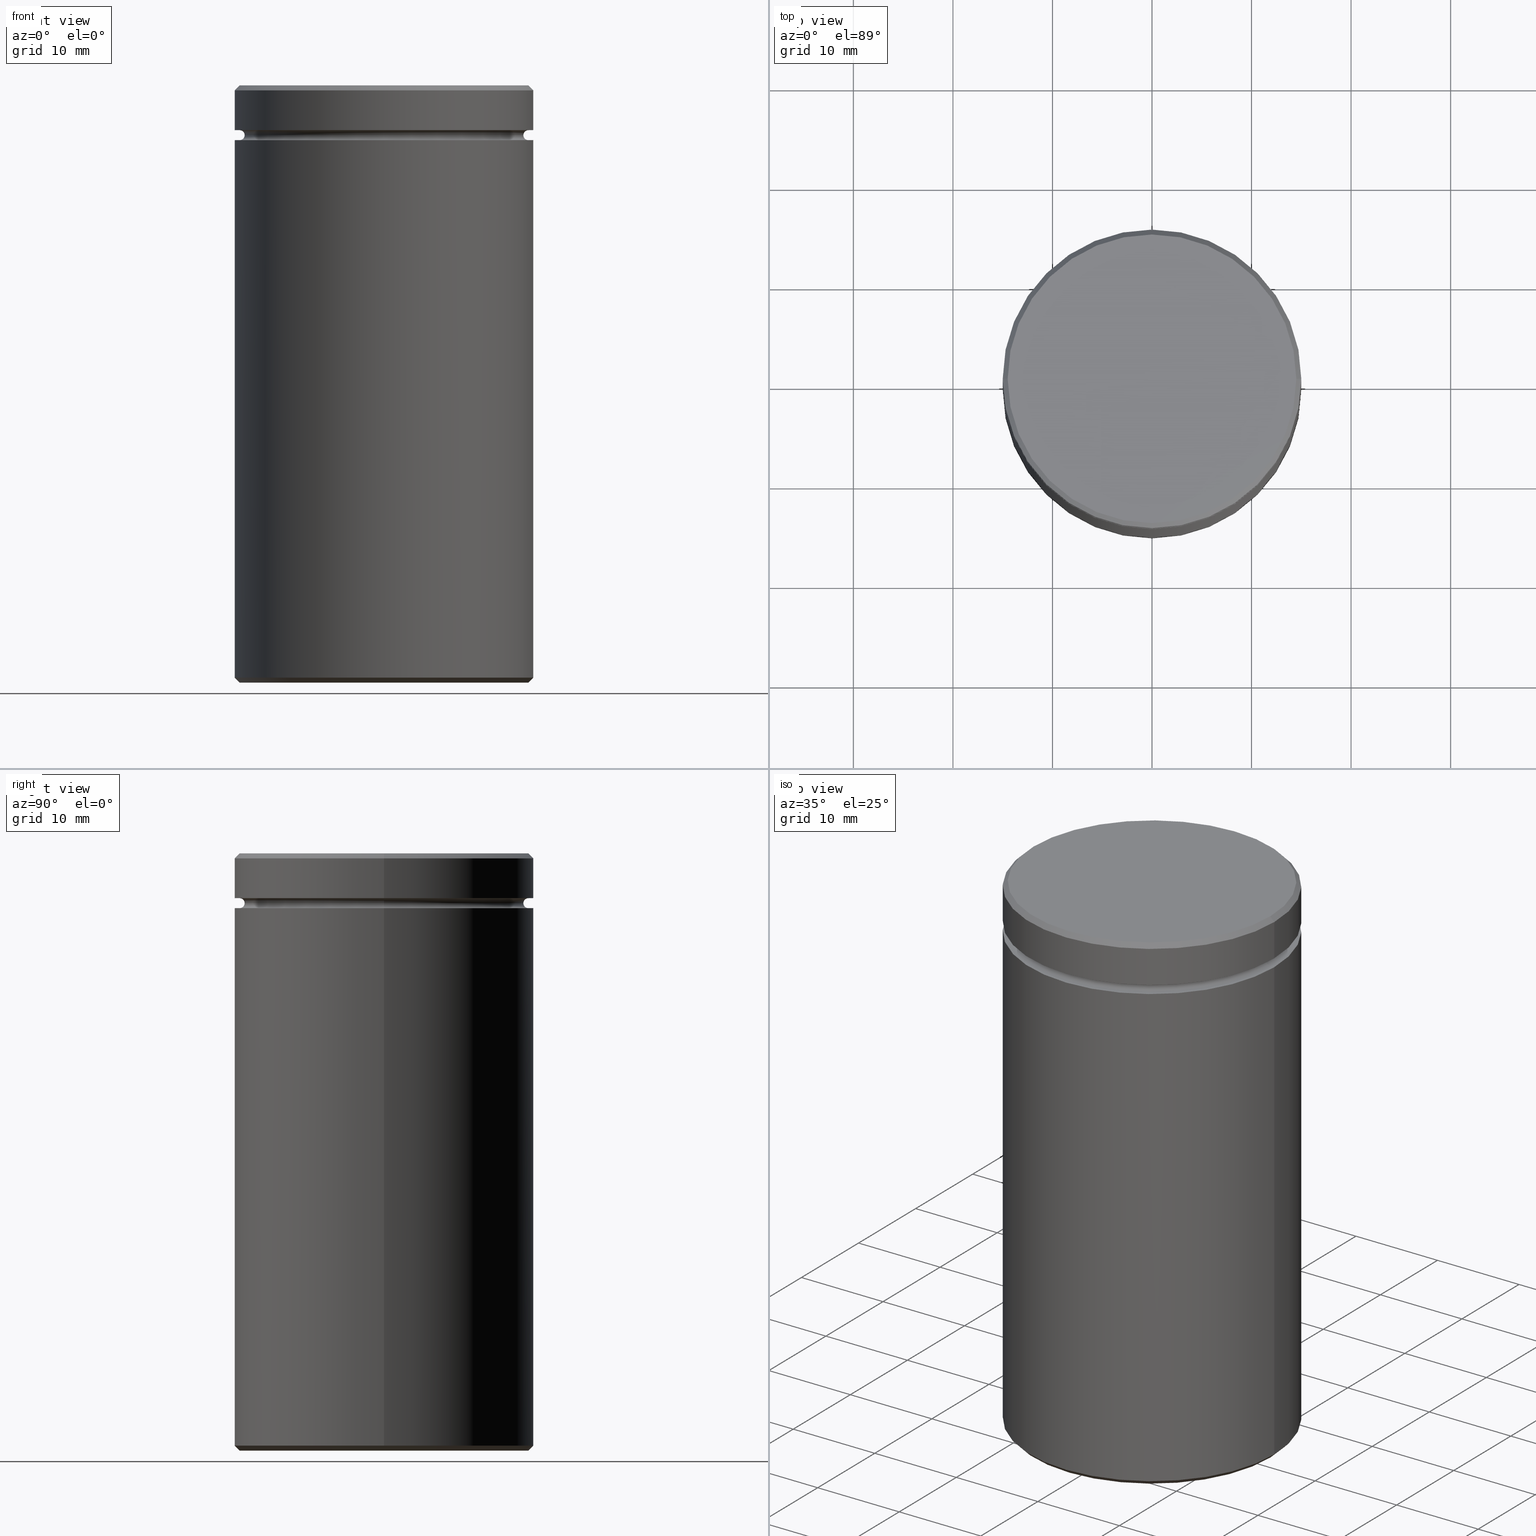
[diagram: canonical four-view strip — front | top / right | iso, engineering-drawing reading convention]
A machine part, canonical four-view strip (front | top / right | iso — engineering-drawing reading convention). The complete STEP part file that produces these views, byte-faithful:
ISO-10303-21;
HEADER;
FILE_DESCRIPTION (( 'STEP AP203' ),
    '1' );
FILE_NAME ('6bfd.STEP',
    '2024-01-02T17:58:30',
    ( '' ),
    ( '' ),
    'SwSTEP 2.0',
    'SolidWorks 2019',
    '' );
FILE_SCHEMA (( 'CONFIG_CONTROL_DESIGN' ));
ENDSEC;

DATA;
#1 = CARTESIAN_POINT ( 'NONE',  ( 0.000000000000000000, 0.000000000000000000, -18.99999999999999645 ) ) ;
#2 = SECURITY_CLASSIFICATION ( '', '', #471 ) ;
#3 = AXIS2_PLACEMENT_3D ( 'NONE', #92, #129, #260 ) ;
#4 = ORIENTED_EDGE ( 'NONE', *, *, #304, .T. ) ;
#5 = LINE ( 'NONE', #181, #174 ) ;
#6 = CARTESIAN_POINT ( 'NONE',  ( 0.000000000000000000, 0.000000000000000000, 0.000000000000000000 ) ) ;
#7 = CARTESIAN_POINT ( 'NONE',  ( 15.00000000000000000, 0.000000000000000000, -59.49999999999998579 ) ) ;
#8 = DIRECTION ( 'NONE',  ( -1.000000000000000000, 0.000000000000000000, 0.000000000000000000 ) ) ;
#9 = CARTESIAN_POINT ( 'NONE',  ( 0.000000000000000000, 0.000000000000000000, 0.000000000000000000 ) ) ;
#10 = EDGE_CURVE ( 'NONE', #565, #424, #390, .T. ) ;
#11 = DIRECTION ( 'NONE',  ( -1.000000000000000000, 1.224646799147349509E-16, 0.000000000000000000 ) ) ;
#12 = PERSON_AND_ORGANIZATION_ROLE ( 'creator' ) ;
#13 = PERSON ( 'NEUR�EN�', 'NEUR�EN�', 'NEUR�EN�', ('NEUR�EN�'), ('NEUR�EN�'), ('NEUR�EN�') ) ;
#14 = CIRCLE ( 'NONE', #100, 14.49999999999999645 ) ;
#15 = ORIENTED_EDGE ( 'NONE', *, *, #329, .F. ) ;
#16 = DATE_AND_TIME ( #189, #541 ) ;
#17 = CARTESIAN_POINT ( 'NONE',  ( 0.000000000000000000, 0.000000000000000000, -5.500000000000000000 ) ) ;
#18 = CYLINDRICAL_SURFACE ( 'NONE', #43, 15.00000000000000000 ) ;
#19 = CARTESIAN_POINT ( 'NONE',  ( -15.00000000000000000, 1.836970198721029589E-15, -5.500000000000000000 ) ) ;
#20 = ORIENTED_EDGE ( 'NONE', *, *, #521, .F. ) ;
#21 = CC_DESIGN_PERSON_AND_ORGANIZATION_ASSIGNMENT ( #127, #297, ( #278 ) ) ;
#22 = ORIENTED_EDGE ( 'NONE', *, *, #220, .F. ) ;
#23 = AXIS2_PLACEMENT_3D ( 'NONE', #543, #449, #267 ) ;
#24 = EDGE_LOOP ( 'NONE', ( #358, #4, #229, #368 ) ) ;
#25 = AXIS2_PLACEMENT_3D ( 'NONE', #135, #169, #306 ) ;
#26 = AXIS2_PLACEMENT_3D ( 'NONE', #392, #275, #447 ) ;
#27 = LINE ( 'NONE', #403, #342 ) ;
#28 = ORIENTED_EDGE ( 'NONE', *, *, #385, .F. ) ;
#29 = DIRECTION ( 'NONE',  ( 1.000000000000000000, 0.000000000000000000, 0.000000000000000000 ) ) ;
#30 = ADVANCED_FACE ( 'NONE', ( #335 ), #375, .F. ) ;
#31 = CARTESIAN_POINT ( 'NONE',  ( 0.000000000000000000, 0.000000000000000000, 0.000000000000000000 ) ) ;
#32 = ORIENTED_EDGE ( 'NONE', *, *, #63, .T. ) ;
#33 = LINE ( 'NONE', #427, #423 ) ;
#34 = COORDINATED_UNIVERSAL_TIME_OFFSET ( 1, 0, .AHEAD. ) ;
#35 = AXIS2_PLACEMENT_3D ( 'NONE', #276, #112, #272 ) ;
#36 = EDGE_CURVE ( 'NONE', #322, #448, #150, .T. ) ;
#37 = CYLINDRICAL_SURFACE ( 'NONE', #293, 9.500000000000000000 ) ;
#38 = ORIENTED_EDGE ( 'NONE', *, *, #139, .T. ) ;
#39 = DIRECTION ( 'NONE',  ( 1.000000000000000000, 0.000000000000000000, 0.000000000000000000 ) ) ;
#40 = APPROVAL_DATE_TIME ( #430, #340 ) ;
#41 = DIRECTION ( 'NONE',  ( 0.000000000000000000, 0.000000000000000000, -1.000000000000000000 ) ) ;
#42 = AXIS2_PLACEMENT_3D ( 'NONE', #444, #50, #316 ) ;
#43 = AXIS2_PLACEMENT_3D ( 'NONE', #154, #61, #56 ) ;
#44 = AXIS2_PLACEMENT_3D ( 'NONE', #481, #349, #167 ) ;
#45 = VERTEX_POINT ( 'NONE', #209 ) ;
#46 = DIRECTION ( 'NONE',  ( -0.000000000000000000, -0.000000000000000000, -1.000000000000000000 ) ) ;
#47 = FACE_OUTER_BOUND ( 'NONE', #414, .T. ) ;
#48 = FACE_OUTER_BOUND ( 'NONE', #244, .T. ) ;
#49 = CARTESIAN_POINT ( 'NONE',  ( 0.000000000000000000, 0.000000000000000000, -18.99999999999999645 ) ) ;
#50 = DIRECTION ( 'NONE',  ( 0.000000000000000000, -1.000000000000000000, 0.000000000000000000 ) ) ;
#51 =( NAMED_UNIT ( * ) SI_UNIT ( $, .STERADIAN. ) SOLID_ANGLE_UNIT ( ) );
#52 = PERSON_AND_ORGANIZATION_ROLE ( 'classification_officer' ) ;
#53 = EDGE_CURVE ( 'NONE', #509, #161, #270, .T. ) ;
#54 = CARTESIAN_POINT ( 'NONE',  ( 0.000000000000000000, 0.000000000000000000, -60.00000000000000000 ) ) ;
#55 = MECHANICAL_CONTEXT ( 'NONE', #146, 'mechanical' ) ;
#56 = DIRECTION ( 'NONE',  ( 1.000000000000000000, 0.000000000000000000, 0.000000000000000000 ) ) ;
#57 = DIRECTION ( 'NONE',  ( 0.000000000000000000, 0.000000000000000000, -1.000000000000000000 ) ) ;
#58 = ORIENTED_EDGE ( 'NONE', *, *, #36, .T. ) ;
#59 = COORDINATED_UNIVERSAL_TIME_OFFSET ( 1, 0, .AHEAD. ) ;
#60 = DIRECTION ( 'NONE',  ( -1.000000000000000000, 0.000000000000000000, -0.000000000000000000 ) ) ;
#61 = DIRECTION ( 'NONE',  ( -0.000000000000000000, -0.000000000000000000, 1.000000000000000000 ) ) ;
#62 = AXIS2_PLACEMENT_3D ( 'NONE', #562, #525, #522 ) ;
#63 = EDGE_CURVE ( 'NONE', #188, #106, #567, .T. ) ;
#64 = CARTESIAN_POINT ( 'NONE',  ( -14.50000000000000355, 0.000000000000000000, 0.000000000000000000 ) ) ;
#65 = ORIENTED_EDGE ( 'NONE', *, *, #258, .F. ) ;
#66 = ORIENTED_EDGE ( 'NONE', *, *, #274, .F. ) ;
#67 = CARTESIAN_POINT ( 'NONE',  ( -13.99999999999999822, 1.745121688784978228E-15, -4.999999999999999112 ) ) ;
#68 = ORIENTED_EDGE ( 'NONE', *, *, #296, .T. ) ;
#69 = PLANE ( 'NONE',  #250 ) ;
#70 = CARTESIAN_POINT ( 'NONE',  ( 0.000000000000000000, 0.000000000000000000, -4.500000000000000888 ) ) ;
#71 = ORIENTED_EDGE ( 'NONE', *, *, #385, .T. ) ;
#72 = APPROVAL_DATE_TIME ( #287, #192 ) ;
#73 = CARTESIAN_POINT ( 'NONE',  ( 0.000000000000000000, 15.00000000000000000, -60.00000000000000000 ) ) ;
#74 = AXIS2_PLACEMENT_3D ( 'NONE', #144, #315, #279 ) ;
#75 = APPROVAL_ROLE ( '' ) ;
#76 = TOROIDAL_SURFACE ( 'NONE', #383, 14.49999999999999822, 0.5000000000000000000 ) ;
#77 = CARTESIAN_POINT ( 'NONE',  ( 0.000000000000000000, 0.000000000000000000, -59.49999999999998579 ) ) ;
#78 = EDGE_CURVE ( 'NONE', #198, #378, #217, .T. ) ;
#79 = CARTESIAN_POINT ( 'NONE',  ( 0.000000000000000000, 0.000000000000000000, -4.999999999999999112 ) ) ;
#80 = ORIENTED_EDGE ( 'NONE', *, *, #166, .F. ) ;
#81 = FACE_OUTER_BOUND ( 'NONE', #474, .T. ) ;
#82 = ORIENTED_EDGE ( 'NONE', *, *, #443, .T. ) ;
#83 = CARTESIAN_POINT ( 'NONE',  ( -14.49999999999999822, 0.000000000000000000, -5.000000000000000888 ) ) ;
#84 = VERTEX_POINT ( 'NONE', #224 ) ;
#85 = DIRECTION ( 'NONE',  ( 1.000000000000000000, 0.000000000000000000, 0.000000000000000000 ) ) ;
#86 = ADVANCED_FACE ( 'NONE', ( #168 ), #37, .F. ) ;
#87 = ORIENTED_EDGE ( 'NONE', *, *, #199, .F. ) ;
#88 = CC_DESIGN_APPROVAL ( #340, ( #2 ) ) ;
#89 = FACE_OUTER_BOUND ( 'NONE', #407, .T. ) ;
#90 = APPROVAL_STATUS ( 'not_yet_approved' ) ;
#91 = PERSON_AND_ORGANIZATION ( #13, #446 ) ;
#92 = CARTESIAN_POINT ( 'NONE',  ( 0.000000000000000000, 0.000000000000000000, -5.500000000000000000 ) ) ;
#93 = CARTESIAN_POINT ( 'NONE',  ( 0.000000000000000000, 0.000000000000000000, -5.000000000000000888 ) ) ;
#94 = DATE_AND_TIME ( #208, #115 ) ;
#95 = CYLINDRICAL_SURFACE ( 'NONE', #222, 15.00000000000000000 ) ;
#96 = PERSON_AND_ORGANIZATION ( #13, #446 ) ;
#97 = FACE_OUTER_BOUND ( 'NONE', #364, .T. ) ;
#98 = CIRCLE ( 'NONE', #123, 9.500000000000000000 ) ;
#99 = EDGE_CURVE ( 'NONE', #273, #424, #347, .T. ) ;
#100 = AXIS2_PLACEMENT_3D ( 'NONE', #431, #41, #221 ) ;
#101 = FACE_OUTER_BOUND ( 'NONE', #527, .T. ) ;
#102 = PLANE ( 'NONE',  #313 ) ;
#103 = ADVANCED_FACE ( 'NONE', ( #226 ), #467, .T. ) ;
#104 = AXIS2_PLACEMENT_3D ( 'NONE', #386, #536, #149 ) ;
#105 = AXIS2_PLACEMENT_3D ( 'NONE', #77, #280, #459 ) ;
#106 = VERTEX_POINT ( 'NONE', #357 ) ;
#107 = PRODUCT_RELATED_PRODUCT_CATEGORY ( 'detail', '', ( #325 ) ) ;
#108 = PLANE ( 'NONE',  #26 ) ;
#109 = PERSON_AND_ORGANIZATION_ROLE ( 'design_owner' ) ;
#110 = ORIENTED_EDGE ( 'NONE', *, *, #220, .T. ) ;
#111 = DIRECTION ( 'NONE',  ( -0.000000000000000000, -0.000000000000000000, 1.000000000000000000 ) ) ;
#112 = DIRECTION ( 'NONE',  ( -0.000000000000000000, -0.000000000000000000, 1.000000000000000000 ) ) ;
#113 = ADVANCED_FACE ( 'NONE', ( #318 ), #18, .T. ) ;
#114 = CARTESIAN_POINT ( 'NONE',  ( 0.000000000000000000, 0.000000000000000000, -5.500000000000000000 ) ) ;
#115 = LOCAL_TIME ( 18, 58, 30.00000000000000000, #34 ) ;
#116 = CIRCLE ( 'NONE', #305, 15.00000000000000000 ) ;
#117 = PERSON_AND_ORGANIZATION ( #13, #446 ) ;
#118 = ORIENTED_EDGE ( 'NONE', *, *, #243, .F. ) ;
#119 = EDGE_LOOP ( 'NONE', ( #245, #461 ) ) ;
#120 = EDGE_LOOP ( 'NONE', ( #362, #184 ) ) ;
#121 = ADVANCED_FACE ( 'NONE', ( #47 ), #394, .T. ) ;
#122 = DIRECTION ( 'NONE',  ( 1.000000000000000000, 0.000000000000000000, 0.000000000000000000 ) ) ;
#123 = AXIS2_PLACEMENT_3D ( 'NONE', #54, #529, #8 ) ;
#124 = ORIENTED_EDGE ( 'NONE', *, *, #411, .F. ) ;
#125 = AXIS2_PLACEMENT_3D ( 'NONE', #213, #158, #128 ) ;
#126 = AXIS2_PLACEMENT_3D ( 'NONE', #314, #498, #551 ) ;
#127 = PERSON_AND_ORGANIZATION ( #13, #446 ) ;
#128 = DIRECTION ( 'NONE',  ( -1.000000000000000000, 0.000000000000000000, 0.000000000000000000 ) ) ;
#129 = DIRECTION ( 'NONE',  ( -0.000000000000000000, -0.000000000000000000, 1.000000000000000000 ) ) ;
#130 = EDGE_LOOP ( 'NONE', ( #352, #152, #118, #463 ) ) ;
#131 = CC_DESIGN_PERSON_AND_ORGANIZATION_ASSIGNMENT ( #492, #12, ( #278 ) ) ;
#132 = DIRECTION ( 'NONE',  ( 1.000000000000000000, 0.000000000000000000, 0.000000000000000000 ) ) ;
#133 = DATE_TIME_ROLE ( 'classification_date' ) ;
#134 = CIRCLE ( 'NONE', #445, 14.49999999999999822 ) ;
#135 = CARTESIAN_POINT ( 'NONE',  ( 0.000000000000000000, 0.000000000000000000, -59.49999999999998579 ) ) ;
#136 = CARTESIAN_POINT ( 'NONE',  ( 0.000000000000000000, 0.000000000000000000, -59.49999999999998579 ) ) ;
#137 = DIRECTION ( 'NONE',  ( -0.000000000000000000, -0.000000000000000000, 1.000000000000000000 ) ) ;
#138 = DIRECTION ( 'NONE',  ( 1.000000000000000000, 0.000000000000000000, 0.000000000000000000 ) ) ;
#139 = EDGE_CURVE ( 'NONE', #332, #242, #116, .T. ) ;
#140 = DIRECTION ( 'NONE',  ( -0.000000000000000000, -0.000000000000000000, 1.000000000000000000 ) ) ;
#141 = DIRECTION ( 'NONE',  ( -1.224646799147353207E-16, 1.000000000000000000, 0.000000000000000000 ) ) ;
#142 = DIRECTION ( 'NONE',  ( -0.000000000000000000, -0.000000000000000000, 1.000000000000000000 ) ) ;
#143 = ADVANCED_FACE ( 'NONE', ( #416 ), #476, .T. ) ;
#144 = CARTESIAN_POINT ( 'NONE',  ( 0.000000000000000000, 0.000000000000000000, -18.99999999999999645 ) ) ;
#145 = DIRECTION ( 'NONE',  ( 0.000000000000000000, 0.000000000000000000, 1.000000000000000000 ) ) ;
#146 = APPLICATION_CONTEXT ( 'configuration controlled 3d designs of mechanical parts and assemblies' ) ;
#147 = ORIENTED_EDGE ( 'NONE', *, *, #282, .T. ) ;
#148 = CIRCLE ( 'NONE', #44, 15.00000000000000000 ) ;
#149 = DIRECTION ( 'NONE',  ( 1.000000000000000000, 0.000000000000000000, 0.000000000000000000 ) ) ;
#150 = CIRCLE ( 'NONE', #488, 14.50000000000000355 ) ;
#151 = DIRECTION ( 'NONE',  ( -1.000000000000000000, 0.000000000000000000, -0.000000000000000000 ) ) ;
#152 = ORIENTED_EDGE ( 'NONE', *, *, #175, .T. ) ;
#153 = DIRECTION ( 'NONE',  ( 0.000000000000000000, 0.000000000000000000, -1.000000000000000000 ) ) ;
#154 = CARTESIAN_POINT ( 'NONE',  ( 0.000000000000000000, 0.000000000000000000, 0.000000000000000000 ) ) ;
#155 = DIRECTION ( 'NONE',  ( -0.000000000000000000, -0.000000000000000000, 1.000000000000000000 ) ) ;
#156 = ORIENTED_EDGE ( 'NONE', *, *, #539, .T. ) ;
#157 = ADVANCED_FACE ( 'NONE', ( #159 ), #196, .T. ) ;
#158 = DIRECTION ( 'NONE',  ( 0.000000000000000000, 0.000000000000000000, -1.000000000000000000 ) ) ;
#159 = FACE_OUTER_BOUND ( 'NONE', #393, .T. ) ;
#160 = ORIENTED_EDGE ( 'NONE', *, *, #139, .F. ) ;
#161 = VERTEX_POINT ( 'NONE', #210 ) ;
#162 = CARTESIAN_POINT ( 'NONE',  ( 15.00000000000000000, 0.000000000000000000, -4.500000000000000888 ) ) ;
#163 = AXIS2_PLACEMENT_3D ( 'NONE', #6, #145, #537 ) ;
#164 = EDGE_LOOP ( 'NONE', ( #207, #156, #68, #124 ) ) ;
#165 = AXIS2_PLACEMENT_3D ( 'NONE', #136, #298, #255 ) ;
#166 = EDGE_CURVE ( 'NONE', #84, #369, #134, .T. ) ;
#167 = DIRECTION ( 'NONE',  ( 1.000000000000000000, 0.000000000000000000, 0.000000000000000000 ) ) ;
#168 = FACE_OUTER_BOUND ( 'NONE', #542, .T. ) ;
#169 = DIRECTION ( 'NONE',  ( -0.000000000000000000, -0.000000000000000000, 1.000000000000000000 ) ) ;
#170 = ORIENTED_EDGE ( 'NONE', *, *, #494, .F. ) ;
#171 = DIRECTION ( 'NONE',  ( -0.000000000000000000, -0.000000000000000000, 1.000000000000000000 ) ) ;
#172 = CARTESIAN_POINT ( 'NONE',  ( 0.000000000000000000, 0.000000000000000000, 0.000000000000000000 ) ) ;
#173 = AXIS2_PLACEMENT_3D ( 'NONE', #79, #512, #253 ) ;
#174 = VECTOR ( 'NONE', #111, 1000.000000000000000 ) ;
#175 = EDGE_CURVE ( 'NONE', #45, #188, #404, .T. ) ;
#176 = CARTESIAN_POINT ( 'NONE',  ( 0.000000000000000000, 0.000000000000000000, -4.500000000000000888 ) ) ;
#177 = CYLINDRICAL_SURFACE ( 'NONE', #518, 9.500000000000000000 ) ;
#178 = DIRECTION ( 'NONE',  ( -0.000000000000000000, -0.000000000000000000, 1.000000000000000000 ) ) ;
#179 =( LENGTH_UNIT ( ) NAMED_UNIT ( * ) SI_UNIT ( .MILLI., .METRE. ) );
#180 = EDGE_CURVE ( 'NONE', #322, #218, #326, .T. ) ;
#181 = CARTESIAN_POINT ( 'NONE',  ( -15.00000000000000000, 1.836970198721029589E-15, 0.000000000000000000 ) ) ;
#182 = APPROVAL_STATUS ( 'not_yet_approved' ) ;
#183 = DIRECTION ( 'NONE',  ( 0.000000000000000000, 0.000000000000000000, -1.000000000000000000 ) ) ;
#184 = ORIENTED_EDGE ( 'NONE', *, *, #10, .F. ) ;
#185 = DIRECTION ( 'NONE',  ( -0.000000000000000000, -0.000000000000000000, -1.000000000000000000 ) ) ;
#186 = APPROVAL_DATE_TIME ( #94, #528 ) ;
#187 = DESIGN_CONTEXT ( 'detailed design', #268, 'design' ) ;
#188 = VERTEX_POINT ( 'NONE', #19 ) ;
#189 = CALENDAR_DATE ( 2024, 2, 1 ) ;
#190 = CIRCLE ( 'NONE', #105, 15.00000000000000000 ) ;
#191 = VECTOR ( 'NONE', #534, 1000.000000000000000 ) ;
#192 = APPROVAL ( #182, 'NEUR�EN�' ) ;
#193 = VERTEX_POINT ( 'NONE', #194 ) ;
#194 = CARTESIAN_POINT ( 'NONE',  ( 15.00000000000000000, 0.000000000000000000, -0.5000000000000038858 ) ) ;
#195 = ORIENTED_EDGE ( 'NONE', *, *, #343, .F. ) ;
#196 = CYLINDRICAL_SURFACE ( 'NONE', #249, 15.00000000000000000 ) ;
#197 = APPLICATION_PROTOCOL_DEFINITION ( 'international standard', 'config_control_design', 1994, #268 ) ;
#198 = VERTEX_POINT ( 'NONE', #67 ) ;
#199 = EDGE_CURVE ( 'NONE', #509, #363, #361, .T. ) ;
#200 = CIRCLE ( 'NONE', #510, 15.00000000000000000 ) ;
#201 = DIRECTION ( 'NONE',  ( 0.000000000000000000, 0.000000000000000000, -1.000000000000000000 ) ) ;
#202 = AXIS2_PLACEMENT_3D ( 'NONE', #377, #434, #85 ) ;
#203 = VECTOR ( 'NONE', #264, 1000.000000000000000 ) ;
#204 = PERSON_AND_ORGANIZATION ( #13, #446 ) ;
#205 = DIRECTION ( 'NONE',  ( -0.000000000000000000, -0.000000000000000000, -1.000000000000000000 ) ) ;
#206 = ORIENTED_EDGE ( 'NONE', *, *, #53, .F. ) ;
#207 = ORIENTED_EDGE ( 'NONE', *, *, #482, .F. ) ;
#208 = CALENDAR_DATE ( 2024, 2, 1 ) ;
#209 = CARTESIAN_POINT ( 'NONE',  ( -15.00000000000000000, 1.836970198721029589E-15, -59.49999999999998579 ) ) ;
#210 = CARTESIAN_POINT ( 'NONE',  ( -14.49999999999999645, 1.806354028742345802E-15, -60.00000000000000000 ) ) ;
#211 = ADVANCED_FACE ( 'NONE', ( #406, #89 ), #516, .T. ) ;
#212 = ORIENTED_EDGE ( 'NONE', *, *, #539, .F. ) ;
#213 = CARTESIAN_POINT ( 'NONE',  ( 0.000000000000000000, 0.000000000000000000, -60.00000000000000000 ) ) ;
#214 = DIRECTION ( 'NONE',  ( -0.000000000000000000, -1.000000000000000000, -0.000000000000000000 ) ) ;
#215 = VECTOR ( 'NONE', #478, 1000.000000000000000 ) ;
#216 = CC_DESIGN_DATE_AND_TIME_ASSIGNMENT ( #439, #133, ( #2 ) ) ;
#217 = CIRCLE ( 'NONE', #281, 13.99999999999999822 ) ;
#218 = VERTEX_POINT ( 'NONE', #555 ) ;
#219 = CARTESIAN_POINT ( 'NONE',  ( 9.500000000000000000, 1.163414459189985485E-15, -60.00000000000000000 ) ) ;
#220 = EDGE_CURVE ( 'NONE', #242, #193, #33, .T. ) ;
#221 = DIRECTION ( 'NONE',  ( -1.000000000000000000, 0.000000000000000000, 0.000000000000000000 ) ) ;
#222 = AXIS2_PLACEMENT_3D ( 'NONE', #172, #140, #138 ) ;
#223 = CC_DESIGN_APPROVAL ( #192, ( #472 ) ) ;
#224 = CARTESIAN_POINT ( 'NONE',  ( -14.49999999999999822, 1.775737858763662015E-15, -5.500000000000000000 ) ) ;
#225 = EDGE_CURVE ( 'NONE', #448, #322, #502, .T. ) ;
#226 = FACE_OUTER_BOUND ( 'NONE', #240, .T. ) ;
#227 = CARTESIAN_POINT ( 'NONE',  ( 0.000000000000000000, 0.000000000000000000, -18.99999999999999645 ) ) ;
#228 = AXIS2_PLACEMENT_3D ( 'NONE', #31, #201, #330 ) ;
#229 = ORIENTED_EDGE ( 'NONE', *, *, #511, .F. ) ;
#230 = CARTESIAN_POINT ( 'NONE',  ( -14.50000000000000355, 0.000000000000000000, 0.000000000000000000 ) ) ;
#231 = PRODUCT_DEFINITION_SHAPE ( 'NONE', 'NONE',  #472 ) ;
#232 = ORIENTED_EDGE ( 'NONE', *, *, #482, .T. ) ;
#233 = CARTESIAN_POINT ( 'NONE',  ( -9.500000000000000000, 0.000000000000000000, -18.99999999999999645 ) ) ;
#234 = ADVANCED_FACE ( 'NONE', ( #519 ), #261, .T. ) ;
#235 = AXIS2_PLACEMENT_3D ( 'NONE', #17, #291, #466 ) ;
#236 = CARTESIAN_POINT ( 'NONE',  ( -9.500000000000000000, 0.000000000000000000, -60.00000000000000000 ) ) ;
#237 = VECTOR ( 'NONE', #155, 1000.000000000000000 ) ;
#238 = DIRECTION ( 'NONE',  ( -0.7071067811865414665, 0.000000000000000000, -0.7071067811865536790 ) ) ;
#239 = ORIENTED_EDGE ( 'NONE', *, *, #63, .F. ) ;
#240 = EDGE_LOOP ( 'NONE', ( #489, #206, #339, #545 ) ) ;
#241 = DIRECTION ( 'NONE',  ( 0.7071067811865389130, 0.000000000000000000, 0.7071067811865561215 ) ) ;
#242 = VERTEX_POINT ( 'NONE', #162 ) ;
#243 = EDGE_CURVE ( 'NONE', #106, #188, #341, .T. ) ;
#244 = EDGE_LOOP ( 'NONE', ( #464, #379, #540, #417 ) ) ;
#245 = ORIENTED_EDGE ( 'NONE', *, *, #53, .T. ) ;
#246 = CIRCLE ( 'NONE', #74, 9.500000000000000000 ) ;
#247 = APPROVAL_PERSON_ORGANIZATION ( #96, #340, #338 ) ;
#248 = DIRECTION ( 'NONE',  ( -0.000000000000000000, -0.000000000000000000, 1.000000000000000000 ) ) ;
#249 = AXIS2_PLACEMENT_3D ( 'NONE', #508, #283, #122 ) ;
#250 = AXIS2_PLACEMENT_3D ( 'NONE', #73, #548, #60 ) ;
#251 = FACE_OUTER_BOUND ( 'NONE', #164, .T. ) ;
#252 = FACE_OUTER_BOUND ( 'NONE', #119, .T. ) ;
#253 = DIRECTION ( 'NONE',  ( 1.000000000000000000, 0.000000000000000000, 0.000000000000000000 ) ) ;
#254 = CARTESIAN_POINT ( 'NONE',  ( 0.000000000000000000, 0.000000000000000000, 0.000000000000000000 ) ) ;
#255 = DIRECTION ( 'NONE',  ( -1.000000000000000000, 0.000000000000000000, 0.000000000000000000 ) ) ;
#256 = ORIENTED_EDGE ( 'NONE', *, *, #432, .F. ) ;
#257 = AXIS2_PLACEMENT_3D ( 'NONE', #563, #171, #132 ) ;
#258 = EDGE_CURVE ( 'NONE', #161, #509, #14, .T. ) ;
#259 = DIRECTION ( 'NONE',  ( 1.000000000000000000, 0.000000000000000000, 0.000000000000000000 ) ) ;
#260 = DIRECTION ( 'NONE',  ( 1.000000000000000000, 0.000000000000000000, 0.000000000000000000 ) ) ;
#261 = CONICAL_SURFACE ( 'NONE', #25, 15.00000000000000000, 0.7853981633974361776 ) ;
#262 = DIRECTION ( 'NONE',  ( -0.000000000000000000, -0.000000000000000000, 1.000000000000000000 ) ) ;
#263 = CALENDAR_DATE ( 2024, 2, 1 ) ;
#264 = DIRECTION ( 'NONE',  ( 0.7071067811865414665, 8.659560562354858902E-17, -0.7071067811865536790 ) ) ;
#265 = CC_DESIGN_DATE_AND_TIME_ASSIGNMENT ( #16, #323, ( #472 ) ) ;
#266 = DIRECTION ( 'NONE',  ( -1.000000000000000000, 0.000000000000000000, 0.000000000000000000 ) ) ;
#267 = DIRECTION ( 'NONE',  ( -1.000000000000000000, 0.000000000000000000, 0.000000000000000000 ) ) ;
#268 = APPLICATION_CONTEXT ( 'configuration controlled 3d designs of mechanical parts and assemblies' ) ;
#269 = CIRCLE ( 'NONE', #42, 0.5000000000000004441 ) ;
#270 = CIRCLE ( 'NONE', #367, 14.49999999999999645 ) ;
#271 = LOCAL_TIME ( 18, 58, 30.00000000000000000, #389 ) ;
#272 = DIRECTION ( 'NONE',  ( 1.000000000000000000, 0.000000000000000000, 0.000000000000000000 ) ) ;
#273 = VERTEX_POINT ( 'NONE', #381 ) ;
#274 = EDGE_CURVE ( 'NONE', #363, #45, #402, .T. ) ;
#275 = DIRECTION ( 'NONE',  ( 0.000000000000000000, 0.000000000000000000, -1.000000000000000000 ) ) ;
#276 = CARTESIAN_POINT ( 'NONE',  ( 0.000000000000000000, 0.000000000000000000, -59.49999999999998579 ) ) ;
#277 = EDGE_LOOP ( 'NONE', ( #65, #409, #66, #87 ) ) ;
#278 = PRODUCT_DEFINITION_FORMATION_WITH_SPECIFIED_SOURCE ( 'LIBOVOLN�', '', #325, .NOT_KNOWN. ) ;
#279 = DIRECTION ( 'NONE',  ( -1.000000000000000000, 0.000000000000000000, 0.000000000000000000 ) ) ;
#280 = DIRECTION ( 'NONE',  ( -0.000000000000000000, -0.000000000000000000, 1.000000000000000000 ) ) ;
#281 = AXIS2_PLACEMENT_3D ( 'NONE', #384, #262, #438 ) ;
#282 = EDGE_CURVE ( 'NONE', #363, #106, #473, .T. ) ;
#283 = DIRECTION ( 'NONE',  ( -0.000000000000000000, -0.000000000000000000, 1.000000000000000000 ) ) ;
#284 = EDGE_LOOP ( 'NONE', ( #556, #517, #289, #514 ) ) ;
#285 = VERTEX_POINT ( 'NONE', #419 ) ;
#286 = DIRECTION ( 'NONE',  ( 1.000000000000000000, 0.000000000000000000, 0.000000000000000000 ) ) ;
#287 = DATE_AND_TIME ( #547, #271 ) ;
#288 = ORIENTED_EDGE ( 'NONE', *, *, #296, .F. ) ;
#289 = ORIENTED_EDGE ( 'NONE', *, *, #180, .T. ) ;
#290 = DIRECTION ( 'NONE',  ( -0.7071067811865389130, 8.659560562354828088E-17, 0.7071067811865561215 ) ) ;
#291 = DIRECTION ( 'NONE',  ( 0.000000000000000000, 0.000000000000000000, -1.000000000000000000 ) ) ;
#292 = DIRECTION ( 'NONE',  ( 0.000000000000000000, 0.000000000000000000, -1.000000000000000000 ) ) ;
#293 = AXIS2_PLACEMENT_3D ( 'NONE', #1, #185, #441 ) ;
#294 = AXIS2_PLACEMENT_3D ( 'NONE', #495, #346, #11 ) ;
#295 = ORIENTED_EDGE ( 'NONE', *, *, #546, .T. ) ;
#296 = EDGE_CURVE ( 'NONE', #198, #299, #320, .T. ) ;
#297 = PERSON_AND_ORGANIZATION_ROLE ( 'design_supplier' ) ;
#298 = DIRECTION ( 'NONE',  ( -0.000000000000000000, -0.000000000000000000, 1.000000000000000000 ) ) ;
#299 = VERTEX_POINT ( 'NONE', #336 ) ;
#300 = ADVANCED_BREP_SHAPE_REPRESENTATION ( '6bfd', ( #486, #163 ), #457 ) ;
#301 = ORIENTED_EDGE ( 'NONE', *, *, #243, .T. ) ;
#302 = DIRECTION ( 'NONE',  ( 1.000000000000000000, 0.000000000000000000, 0.000000000000000000 ) ) ;
#303 = CC_DESIGN_SECURITY_CLASSIFICATION ( #2, ( #278 ) ) ;
#304 = EDGE_CURVE ( 'NONE', #448, #193, #515, .T. ) ;
#305 = AXIS2_PLACEMENT_3D ( 'NONE', #70, #248, #552 ) ;
#306 = DIRECTION ( 'NONE',  ( 1.000000000000000000, 0.000000000000000000, 0.000000000000000000 ) ) ;
#307 = CALENDAR_DATE ( 2024, 2, 1 ) ;
#308 = DIRECTION ( 'NONE',  ( -1.000000000000000000, 0.000000000000000000, 0.000000000000000000 ) ) ;
#309 = CARTESIAN_POINT ( 'NONE',  ( 15.00000000000000000, 0.000000000000000000, 0.000000000000000000 ) ) ;
#310 = DIRECTION ( 'NONE',  ( 0.000000000000000000, 0.000000000000000000, -1.000000000000000000 ) ) ;
#311 = ADVANCED_FACE ( 'NONE', ( #48 ), #177, .F. ) ;
#312 = COORDINATED_UNIVERSAL_TIME_OFFSET ( 1, 0, .AHEAD. ) ;
#313 = AXIS2_PLACEMENT_3D ( 'NONE', #49, #183, #151 ) ;
#314 = CARTESIAN_POINT ( 'NONE',  ( 0.000000000000000000, 0.000000000000000000, -5.000000000000000888 ) ) ;
#315 = DIRECTION ( 'NONE',  ( 0.000000000000000000, 0.000000000000000000, -1.000000000000000000 ) ) ;
#316 = DIRECTION ( 'NONE',  ( 0.000000000000000000, 0.000000000000000000, -1.000000000000000000 ) ) ;
#317 = APPLICATION_PROTOCOL_DEFINITION ( 'international standard', 'config_control_design', 1994, #146 ) ;
#318 = FACE_OUTER_BOUND ( 'NONE', #348, .T. ) ;
#319 = ADVANCED_FACE ( 'NONE', ( #399, #101 ), #108, .T. ) ;
#320 = CIRCLE ( 'NONE', #480, 0.5000000000000004441 ) ;
#321 = AXIS2_PLACEMENT_3D ( 'NONE', #455, #507, #496 ) ;
#322 = VERTEX_POINT ( 'NONE', #230 ) ;
#323 = DATE_TIME_ROLE ( 'creation_date' ) ;
#324 = DIRECTION ( 'NONE',  ( -1.000000000000000000, 0.000000000000000000, 0.000000000000000000 ) ) ;
#325 = PRODUCT ( '6bfd', '6bfd', '', ( #55 ) ) ;
#326 = LINE ( 'NONE', #64, #560 ) ;
#327 = ORIENTED_EDGE ( 'NONE', *, *, #494, .T. ) ;
#328 = ORIENTED_EDGE ( 'NONE', *, *, #443, .F. ) ;
#329 = EDGE_CURVE ( 'NONE', #198, #84, #356, .T. ) ;
#330 = DIRECTION ( 'NONE',  ( -1.000000000000000000, 0.000000000000000000, 0.000000000000000000 ) ) ;
#331 = APPROVAL_PERSON_ORGANIZATION ( #454, #528, #75 ) ;
#332 = VERTEX_POINT ( 'NONE', #532 ) ;
#333 = EDGE_CURVE ( 'NONE', #505, #273, #246, .T. ) ;
#334 = VECTOR ( 'NONE', #290, 1000.000000000000000 ) ;
#335 = FACE_OUTER_BOUND ( 'NONE', #549, .T. ) ;
#336 = CARTESIAN_POINT ( 'NONE',  ( -14.49999999999999822, 0.000000000000000000, -4.500000000000000888 ) ) ;
#337 = ADVANCED_FACE ( 'NONE', ( #484 ), #559, .T. ) ;
#338 = APPROVAL_ROLE ( '' ) ;
#339 = ORIENTED_EDGE ( 'NONE', *, *, #199, .T. ) ;
#340 = APPROVAL ( #90, 'NEUR�EN�' ) ;
#341 = CIRCLE ( 'NONE', #3, 15.00000000000000000 ) ;
#342 = VECTOR ( 'NONE', #205, 1000.000000000000000 ) ;
#343 = EDGE_CURVE ( 'NONE', #378, #369, #269, .T. ) ;
#344 = DIRECTION ( 'NONE',  ( 1.000000000000000000, 0.000000000000000000, 0.000000000000000000 ) ) ;
#345 = AXIS2_PLACEMENT_3D ( 'NONE', #9, #353, #286 ) ;
#346 = DIRECTION ( 'NONE',  ( 1.224646799147353207E-16, 1.000000000000000000, 0.000000000000000000 ) ) ;
#347 = LINE ( 'NONE', #233, #191 ) ;
#348 = EDGE_LOOP ( 'NONE', ( #553, #38, #110, #295 ) ) ;
#349 = DIRECTION ( 'NONE',  ( 0.000000000000000000, 0.000000000000000000, -1.000000000000000000 ) ) ;
#350 = CARTESIAN_POINT ( 'NONE',  ( 13.99999999999999822, 0.000000000000000000, -4.999999999999999112 ) ) ;
#351 = EDGE_CURVE ( 'NONE', #332, #218, #5, .T. ) ;
#352 = ORIENTED_EDGE ( 'NONE', *, *, #274, .T. ) ;
#353 = DIRECTION ( 'NONE',  ( 0.000000000000000000, -0.000000000000000000, 1.000000000000000000 ) ) ;
#354 = AXIS2_PLACEMENT_3D ( 'NONE', #397, #153, #324 ) ;
#355 = ORIENTED_EDGE ( 'NONE', *, *, #175, .F. ) ;
#356 = CIRCLE ( 'NONE', #294, 0.5000000000000004441 ) ;
#357 = CARTESIAN_POINT ( 'NONE',  ( 15.00000000000000000, 0.000000000000000000, -5.500000000000000000 ) ) ;
#358 = ORIENTED_EDGE ( 'NONE', *, *, #225, .F. ) ;
#359 = CC_DESIGN_PERSON_AND_ORGANIZATION_ASSIGNMENT ( #204, #396, ( #472 ) ) ;
#360 = ORIENTED_EDGE ( 'NONE', *, *, #477, .T. ) ;
#361 = LINE ( 'NONE', #460, #435 ) ;
#362 = ORIENTED_EDGE ( 'NONE', *, *, #477, .F. ) ;
#363 = VERTEX_POINT ( 'NONE', #7 ) ;
#364 = EDGE_LOOP ( 'NONE', ( #15, #212, #499, #80 ) ) ;
#365 = FACE_BOUND ( 'NONE', #120, .T. ) ;
#366 = ORIENTED_EDGE ( 'NONE', *, *, #411, .T. ) ;
#367 = AXIS2_PLACEMENT_3D ( 'NONE', #418, #57, #372 ) ;
#368 = ORIENTED_EDGE ( 'NONE', *, *, #180, .F. ) ;
#369 = VERTEX_POINT ( 'NONE', #487 ) ;
#370 = CC_DESIGN_PERSON_AND_ORGANIZATION_ASSIGNMENT ( #395, #109, ( #325 ) ) ;
#371 = ORIENTED_EDGE ( 'NONE', *, *, #225, .T. ) ;
#372 = DIRECTION ( 'NONE',  ( -1.000000000000000000, 0.000000000000000000, 0.000000000000000000 ) ) ;
#373 = CARTESIAN_POINT ( 'NONE',  ( -15.00000000000000000, 1.836970198721029589E-15, 0.000000000000000000 ) ) ;
#374 = CIRCLE ( 'NONE', #410, 13.99999999999999822 ) ;
#375 = TOROIDAL_SURFACE ( 'NONE', #173, 14.49999999999999822, 0.5000000000000000000 ) ;
#376 = CC_DESIGN_PERSON_AND_ORGANIZATION_ASSIGNMENT ( #91, #52, ( #2 ) ) ;
#377 = CARTESIAN_POINT ( 'NONE',  ( 0.000000000000000000, 13.99999999999999822, -5.500000000000000000 ) ) ;
#378 = VERTEX_POINT ( 'NONE', #350 ) ;
#379 = ORIENTED_EDGE ( 'NONE', *, *, #432, .T. ) ;
#380 = CIRCLE ( 'NONE', #354, 9.500000000000000000 ) ;
#381 = CARTESIAN_POINT ( 'NONE',  ( -9.500000000000000000, 0.000000000000000000, -18.99999999999999645 ) ) ;
#382 = LOCAL_TIME ( 18, 58, 30.00000000000000000, #312 ) ;
#383 = AXIS2_PLACEMENT_3D ( 'NONE', #93, #557, #308 ) ;
#384 = CARTESIAN_POINT ( 'NONE',  ( 0.000000000000000000, 0.000000000000000000, -4.999999999999999112 ) ) ;
#385 = EDGE_CURVE ( 'NONE', #273, #505, #380, .T. ) ;
#386 = CARTESIAN_POINT ( 'NONE',  ( 0.000000000000000000, 0.000000000000000000, 0.000000000000000000 ) ) ;
#387 = CARTESIAN_POINT ( 'NONE',  ( 14.49999999999999645, 0.000000000000000000, -60.00000000000000000 ) ) ;
#388 = DIRECTION ( 'NONE',  ( -0.000000000000000000, -0.000000000000000000, 1.000000000000000000 ) ) ;
#389 = COORDINATED_UNIVERSAL_TIME_OFFSET ( 1, 0, .AHEAD. ) ;
#390 = CIRCLE ( 'NONE', #125, 9.500000000000000000 ) ;
#391 = EDGE_CURVE ( 'NONE', #161, #45, #535, .T. ) ;
#392 = CARTESIAN_POINT ( 'NONE',  ( 0.000000000000000000, 15.00000000000000000, -4.500000000000000888 ) ) ;
#393 = EDGE_LOOP ( 'NONE', ( #355, #440, #147, #239 ) ) ;
#394 = PLANE ( 'NONE',  #345 ) ;
#395 = PERSON_AND_ORGANIZATION ( #13, #446 ) ;
#396 = PERSON_AND_ORGANIZATION_ROLE ( 'creator' ) ;
#397 = CARTESIAN_POINT ( 'NONE',  ( 0.000000000000000000, 0.000000000000000000, -18.99999999999999645 ) ) ;
#398 = ADVANCED_FACE ( 'NONE', ( #251 ), #490, .F. ) ;
#399 = FACE_BOUND ( 'NONE', #493, .T. ) ;
#400 = CIRCLE ( 'NONE', #321, 14.49999999999999822 ) ;
#401 = ORIENTED_EDGE ( 'NONE', *, *, #166, .T. ) ;
#402 = CIRCLE ( 'NONE', #165, 15.00000000000000000 ) ;
#403 = CARTESIAN_POINT ( 'NONE',  ( 9.500000000000000000, 1.163414459189985485E-15, -18.99999999999999645 ) ) ;
#404 = LINE ( 'NONE', #373, #237 ) ;
#405 = ORIENTED_EDGE ( 'NONE', *, *, #333, .T. ) ;
#406 = FACE_BOUND ( 'NONE', #550, .T. ) ;
#407 = EDGE_LOOP ( 'NONE', ( #301, #32 ) ) ;
#408 = ORIENTED_EDGE ( 'NONE', *, *, #521, .T. ) ;
#409 = ORIENTED_EDGE ( 'NONE', *, *, #391, .T. ) ;
#410 = AXIS2_PLACEMENT_3D ( 'NONE', #421, #137, #39 ) ;
#411 = EDGE_CURVE ( 'NONE', #285, #299, #400, .T. ) ;
#412 = CLOSED_SHELL ( 'NONE', ( #558, #30, #234, #143, #311, #462, #564, #420, #121, #113, #319, #211, #157, #86, #503, #337, #103, #569, #398 ) ) ;
#413 = CIRCLE ( 'NONE', #538, 14.49999999999999822 ) ;
#414 = EDGE_LOOP ( 'NONE', ( #58, #371 ) ) ;
#415 = DIRECTION ( 'NONE',  ( -0.000000000000000000, -0.000000000000000000, 1.000000000000000000 ) ) ;
#416 = FACE_OUTER_BOUND ( 'NONE', #24, .T. ) ;
#417 = ORIENTED_EDGE ( 'NONE', *, *, #99, .F. ) ;
#418 = CARTESIAN_POINT ( 'NONE',  ( 0.000000000000000000, 0.000000000000000000, -60.00000000000000000 ) ) ;
#419 = CARTESIAN_POINT ( 'NONE',  ( 14.49999999999999822, 1.775737858763662015E-15, -4.500000000000000888 ) ) ;
#420 = ADVANCED_FACE ( 'NONE', ( #252, #365 ), #69, .T. ) ;
#421 = CARTESIAN_POINT ( 'NONE',  ( 0.000000000000000000, 0.000000000000000000, -4.999999999999999112 ) ) ;
#422 = APPROVAL_STATUS ( 'not_yet_approved' ) ;
#423 = VECTOR ( 'NONE', #524, 1000.000000000000000 ) ;
#424 = VERTEX_POINT ( 'NONE', #236 ) ;
#425 = CARTESIAN_POINT ( 'NONE',  ( 0.000000000000000000, 0.000000000000000000, -0.5000000000000038858 ) ) ;
#426 = FACE_OUTER_BOUND ( 'NONE', #130, .T. ) ;
#427 = CARTESIAN_POINT ( 'NONE',  ( 15.00000000000000000, 0.000000000000000000, 0.000000000000000000 ) ) ;
#428 = ORIENTED_EDGE ( 'NONE', *, *, #511, .T. ) ;
#429 = CYLINDRICAL_SURFACE ( 'NONE', #104, 15.00000000000000000 ) ;
#430 = DATE_AND_TIME ( #263, #382 ) ;
#431 = CARTESIAN_POINT ( 'NONE',  ( 0.000000000000000000, 0.000000000000000000, -60.00000000000000000 ) ) ;
#432 = EDGE_CURVE ( 'NONE', #505, #565, #27, .T. ) ;
#433 = CIRCLE ( 'NONE', #568, 0.5000000000000004441 ) ;
#434 = DIRECTION ( 'NONE',  ( 0.000000000000000000, -0.000000000000000000, 1.000000000000000000 ) ) ;
#435 = VECTOR ( 'NONE', #241, 1000.000000000000000 ) ;
#436 = CIRCLE ( 'NONE', #62, 15.00000000000000000 ) ;
#437 = CARTESIAN_POINT ( 'NONE',  ( 0.000000000000000000, 0.000000000000000000, -4.999999999999999112 ) ) ;
#438 = DIRECTION ( 'NONE',  ( 1.000000000000000000, 0.000000000000000000, 0.000000000000000000 ) ) ;
#439 = DATE_AND_TIME ( #307, #530 ) ;
#440 = ORIENTED_EDGE ( 'NONE', *, *, #456, .T. ) ;
#441 = DIRECTION ( 'NONE',  ( -1.000000000000000000, 0.000000000000000000, 0.000000000000000000 ) ) ;
#442 = CARTESIAN_POINT ( 'NONE',  ( 14.50000000000000355, 1.775737858763662804E-15, 0.000000000000000000 ) ) ;
#443 = EDGE_CURVE ( 'NONE', #369, #84, #566, .T. ) ;
#444 = CARTESIAN_POINT ( 'NONE',  ( 14.49999999999999822, 0.000000000000000000, -4.999999999999999112 ) ) ;
#445 = AXIS2_PLACEMENT_3D ( 'NONE', #114, #292, #497 ) ;
#446 = ORGANIZATION ( 'NEUR�EN�', 'NEUR�EN�', '' ) ;
#447 = DIRECTION ( 'NONE',  ( -1.000000000000000000, 0.000000000000000000, -0.000000000000000000 ) ) ;
#448 = VERTEX_POINT ( 'NONE', #500 ) ;
#449 = DIRECTION ( 'NONE',  ( 0.000000000000000000, 0.000000000000000000, -1.000000000000000000 ) ) ;
#450 = APPROVAL_ROLE ( '' ) ;
#451 = UNCERTAINTY_MEASURE_WITH_UNIT (LENGTH_MEASURE( 1.000000000000000082E-05 ), #179, 'distance_accuracy_value', 'NONE');
#452 = DIRECTION ( 'NONE',  ( -1.000000000000000000, 0.000000000000000000, 0.000000000000000000 ) ) ;
#453 = COORDINATED_UNIVERSAL_TIME_OFFSET ( 1, 0, .AHEAD. ) ;
#454 = PERSON_AND_ORGANIZATION ( #13, #446 ) ;
#455 = CARTESIAN_POINT ( 'NONE',  ( 0.000000000000000000, 0.000000000000000000, -4.500000000000000888 ) ) ;
#456 = EDGE_CURVE ( 'NONE', #45, #363, #190, .T. ) ;
#457 =( GEOMETRIC_REPRESENTATION_CONTEXT ( 3 ) GLOBAL_UNCERTAINTY_ASSIGNED_CONTEXT ( ( #451 ) ) GLOBAL_UNIT_ASSIGNED_CONTEXT ( ( #179, #523, #51 ) ) REPRESENTATION_CONTEXT ( 'NONE', 'WORKASPACE' ) );
#458 = ORIENTED_EDGE ( 'NONE', *, *, #351, .T. ) ;
#459 = DIRECTION ( 'NONE',  ( -1.000000000000000000, 0.000000000000000000, 0.000000000000000000 ) ) ;
#460 = CARTESIAN_POINT ( 'NONE',  ( 15.00000000000000000, 0.000000000000000000, -59.49999999999998579 ) ) ;
#461 = ORIENTED_EDGE ( 'NONE', *, *, #258, .T. ) ;
#462 = ADVANCED_FACE ( 'NONE', ( #426 ), #429, .T. ) ;
#463 = ORIENTED_EDGE ( 'NONE', *, *, #282, .F. ) ;
#464 = ORIENTED_EDGE ( 'NONE', *, *, #333, .F. ) ;
#465 = AXIS2_PLACEMENT_3D ( 'NONE', #437, #388, #344 ) ;
#466 = DIRECTION ( 'NONE',  ( 1.000000000000000000, 0.000000000000000000, 0.000000000000000000 ) ) ;
#467 = CONICAL_SURFACE ( 'NONE', #35, 15.00000000000000000, 0.7853981633974361776 ) ;
#468 = APPROVAL_PERSON_ORGANIZATION ( #117, #192, #450 ) ;
#469 = EDGE_LOOP ( 'NONE', ( #71, #405 ) ) ;
#470 = ORIENTED_EDGE ( 'NONE', *, *, #78, .T. ) ;
#471 = SECURITY_CLASSIFICATION_LEVEL ( 'unclassified' ) ;
#472 = PRODUCT_DEFINITION ( 'NEZN�M�', '', #278, #187 ) ;
#473 = LINE ( 'NONE', #309, #215 ) ;
#474 = EDGE_LOOP ( 'NONE', ( #470, #232, #170, #288 ) ) ;
#475 = CC_DESIGN_APPROVAL ( #528, ( #278 ) ) ;
#476 = CONICAL_SURFACE ( 'NONE', #228, 14.50000000000000355, 0.7853981633974396193 ) ;
#477 = EDGE_CURVE ( 'NONE', #424, #565, #98, .T. ) ;
#478 = DIRECTION ( 'NONE',  ( -0.000000000000000000, -0.000000000000000000, 1.000000000000000000 ) ) ;
#479 = CARTESIAN_POINT ( 'NONE',  ( 9.500000000000000000, 1.163414459189985485E-15, -18.99999999999999645 ) ) ;
#480 = AXIS2_PLACEMENT_3D ( 'NONE', #83, #214, #561 ) ;
#481 = CARTESIAN_POINT ( 'NONE',  ( 0.000000000000000000, 0.000000000000000000, -0.5000000000000038858 ) ) ;
#482 = EDGE_CURVE ( 'NONE', #378, #285, #433, .T. ) ;
#483 = FACE_OUTER_BOUND ( 'NONE', #513, .T. ) ;
#484 = FACE_OUTER_BOUND ( 'NONE', #284, .T. ) ;
#485 = FACE_OUTER_BOUND ( 'NONE', #469, .T. ) ;
#486 = MANIFOLD_SOLID_BREP ( 'Zaoblit1', #412 ) ;
#487 = CARTESIAN_POINT ( 'NONE',  ( 14.49999999999999822, 0.000000000000000000, -5.500000000000000000 ) ) ;
#488 = AXIS2_PLACEMENT_3D ( 'NONE', #254, #415, #29 ) ;
#489 = ORIENTED_EDGE ( 'NONE', *, *, #391, .F. ) ;
#490 = TOROIDAL_SURFACE ( 'NONE', #126, 14.49999999999999822, 0.5000000000000000000 ) ;
#491 = CARTESIAN_POINT ( 'NONE',  ( 14.49999999999999822, 1.775737858763662015E-15, -5.000000000000000888 ) ) ;
#492 = PERSON_AND_ORGANIZATION ( #13, #446 ) ;
#493 = EDGE_LOOP ( 'NONE', ( #327, #366 ) ) ;
#494 = EDGE_CURVE ( 'NONE', #299, #285, #413, .T. ) ;
#495 = CARTESIAN_POINT ( 'NONE',  ( -14.49999999999999822, 1.775737858763662015E-15, -4.999999999999999112 ) ) ;
#496 = DIRECTION ( 'NONE',  ( -1.000000000000000000, 0.000000000000000000, 0.000000000000000000 ) ) ;
#497 = DIRECTION ( 'NONE',  ( 1.000000000000000000, 0.000000000000000000, 0.000000000000000000 ) ) ;
#498 = DIRECTION ( 'NONE',  ( 0.000000000000000000, 0.000000000000000000, -1.000000000000000000 ) ) ;
#499 = ORIENTED_EDGE ( 'NONE', *, *, #343, .T. ) ;
#500 = CARTESIAN_POINT ( 'NONE',  ( 14.50000000000000355, 1.806354028742346196E-15, 0.000000000000000000 ) ) ;
#501 = ORIENTED_EDGE ( 'NONE', *, *, #78, .F. ) ;
#502 = CIRCLE ( 'NONE', #257, 14.50000000000000355 ) ;
#503 = ADVANCED_FACE ( 'NONE', ( #485 ), #102, .T. ) ;
#504 = ORIENTED_EDGE ( 'NONE', *, *, #329, .T. ) ;
#505 = VERTEX_POINT ( 'NONE', #479 ) ;
#506 = CARTESIAN_POINT ( 'NONE',  ( -15.00000000000000000, 1.836970198721029589E-15, -59.49999999999998579 ) ) ;
#507 = DIRECTION ( 'NONE',  ( -0.000000000000000000, -0.000000000000000000, 1.000000000000000000 ) ) ;
#508 = CARTESIAN_POINT ( 'NONE',  ( 0.000000000000000000, 0.000000000000000000, 0.000000000000000000 ) ) ;
#509 = VERTEX_POINT ( 'NONE', #387 ) ;
#510 = AXIS2_PLACEMENT_3D ( 'NONE', #425, #310, #302 ) ;
#511 = EDGE_CURVE ( 'NONE', #218, #193, #148, .T. ) ;
#512 = DIRECTION ( 'NONE',  ( -0.000000000000000000, -0.000000000000000000, 1.000000000000000000 ) ) ;
#513 = EDGE_LOOP ( 'NONE', ( #408, #458, #428, #22 ) ) ;
#514 = ORIENTED_EDGE ( 'NONE', *, *, #546, .F. ) ;
#515 = LINE ( 'NONE', #442, #203 ) ;
#516 = PLANE ( 'NONE',  #202 ) ;
#517 = ORIENTED_EDGE ( 'NONE', *, *, #36, .F. ) ;
#518 = AXIS2_PLACEMENT_3D ( 'NONE', #227, #46, #452 ) ;
#519 = FACE_OUTER_BOUND ( 'NONE', #277, .T. ) ;
#520 = TOROIDAL_SURFACE ( 'NONE', #465, 14.49999999999999822, 0.5000000000000000000 ) ;
#521 = EDGE_CURVE ( 'NONE', #242, #332, #436, .T. ) ;
#522 = DIRECTION ( 'NONE',  ( 1.000000000000000000, 0.000000000000000000, 0.000000000000000000 ) ) ;
#523 =( NAMED_UNIT ( * ) PLANE_ANGLE_UNIT ( ) SI_UNIT ( $, .RADIAN. ) );
#524 = DIRECTION ( 'NONE',  ( -0.000000000000000000, -0.000000000000000000, 1.000000000000000000 ) ) ;
#525 = DIRECTION ( 'NONE',  ( -0.000000000000000000, -0.000000000000000000, 1.000000000000000000 ) ) ;
#526 = SHAPE_DEFINITION_REPRESENTATION ( #231, #300 ) ;
#527 = EDGE_LOOP ( 'NONE', ( #20, #160 ) ) ;
#528 = APPROVAL ( #422, 'NEUR�EN�' ) ;
#529 = DIRECTION ( 'NONE',  ( 0.000000000000000000, 0.000000000000000000, -1.000000000000000000 ) ) ;
#530 = LOCAL_TIME ( 18, 58, 30.00000000000000000, #453 ) ;
#531 = AXIS2_PLACEMENT_3D ( 'NONE', #554, #178, #259 ) ;
#532 = CARTESIAN_POINT ( 'NONE',  ( -15.00000000000000000, 1.836970198721029589E-15, -4.500000000000000888 ) ) ;
#533 = DIRECTION ( 'NONE',  ( -1.000000000000000000, -1.224646799147353454E-16, 0.000000000000000000 ) ) ;
#534 = DIRECTION ( 'NONE',  ( -0.000000000000000000, -0.000000000000000000, -1.000000000000000000 ) ) ;
#535 = LINE ( 'NONE', #506, #334 ) ;
#536 = DIRECTION ( 'NONE',  ( -0.000000000000000000, -0.000000000000000000, 1.000000000000000000 ) ) ;
#537 = DIRECTION ( 'NONE',  ( 1.000000000000000000, 0.000000000000000000, 0.000000000000000000 ) ) ;
#538 = AXIS2_PLACEMENT_3D ( 'NONE', #176, #142, #266 ) ;
#539 = EDGE_CURVE ( 'NONE', #378, #198, #374, .T. ) ;
#540 = ORIENTED_EDGE ( 'NONE', *, *, #10, .T. ) ;
#541 = LOCAL_TIME ( 18, 58, 30.00000000000000000, #59 ) ;
#542 = EDGE_LOOP ( 'NONE', ( #256, #28, #544, #360 ) ) ;
#543 = CARTESIAN_POINT ( 'NONE',  ( 0.000000000000000000, 0.000000000000000000, 0.000000000000000000 ) ) ;
#544 = ORIENTED_EDGE ( 'NONE', *, *, #99, .T. ) ;
#545 = ORIENTED_EDGE ( 'NONE', *, *, #456, .F. ) ;
#546 = EDGE_CURVE ( 'NONE', #193, #218, #200, .T. ) ;
#547 = CALENDAR_DATE ( 2024, 2, 1 ) ;
#548 = DIRECTION ( 'NONE',  ( 0.000000000000000000, 0.000000000000000000, -1.000000000000000000 ) ) ;
#549 = EDGE_LOOP ( 'NONE', ( #501, #504, #328, #195 ) ) ;
#550 = EDGE_LOOP ( 'NONE', ( #82, #401 ) ) ;
#551 = DIRECTION ( 'NONE',  ( -1.000000000000000000, 0.000000000000000000, 0.000000000000000000 ) ) ;
#552 = DIRECTION ( 'NONE',  ( 1.000000000000000000, 0.000000000000000000, 0.000000000000000000 ) ) ;
#553 = ORIENTED_EDGE ( 'NONE', *, *, #351, .F. ) ;
#554 = CARTESIAN_POINT ( 'NONE',  ( 0.000000000000000000, 0.000000000000000000, -5.500000000000000000 ) ) ;
#555 = CARTESIAN_POINT ( 'NONE',  ( -15.00000000000000000, 1.836970198721029589E-15, -0.5000000000000038858 ) ) ;
#556 = ORIENTED_EDGE ( 'NONE', *, *, #304, .F. ) ;
#557 = DIRECTION ( 'NONE',  ( 0.000000000000000000, 0.000000000000000000, -1.000000000000000000 ) ) ;
#558 = ADVANCED_FACE ( 'NONE', ( #81 ), #76, .F. ) ;
#559 = CONICAL_SURFACE ( 'NONE', #23, 14.50000000000000355, 0.7853981633974396193 ) ;
#560 = VECTOR ( 'NONE', #238, 1000.000000000000000 ) ;
#561 = DIRECTION ( 'NONE',  ( 0.000000000000000000, 0.000000000000000000, -1.000000000000000000 ) ) ;
#562 = CARTESIAN_POINT ( 'NONE',  ( 0.000000000000000000, 0.000000000000000000, -4.500000000000000888 ) ) ;
#563 = CARTESIAN_POINT ( 'NONE',  ( 0.000000000000000000, 0.000000000000000000, 0.000000000000000000 ) ) ;
#564 = ADVANCED_FACE ( 'NONE', ( #483 ), #95, .T. ) ;
#565 = VERTEX_POINT ( 'NONE', #219 ) ;
#566 = CIRCLE ( 'NONE', #235, 14.49999999999999822 ) ;
#567 = CIRCLE ( 'NONE', #531, 15.00000000000000000 ) ;
#568 = AXIS2_PLACEMENT_3D ( 'NONE', #491, #141, #533 ) ;
#569 = ADVANCED_FACE ( 'NONE', ( #97 ), #520, .F. ) ;
ENDSEC;
END-ISO-10303-21;
